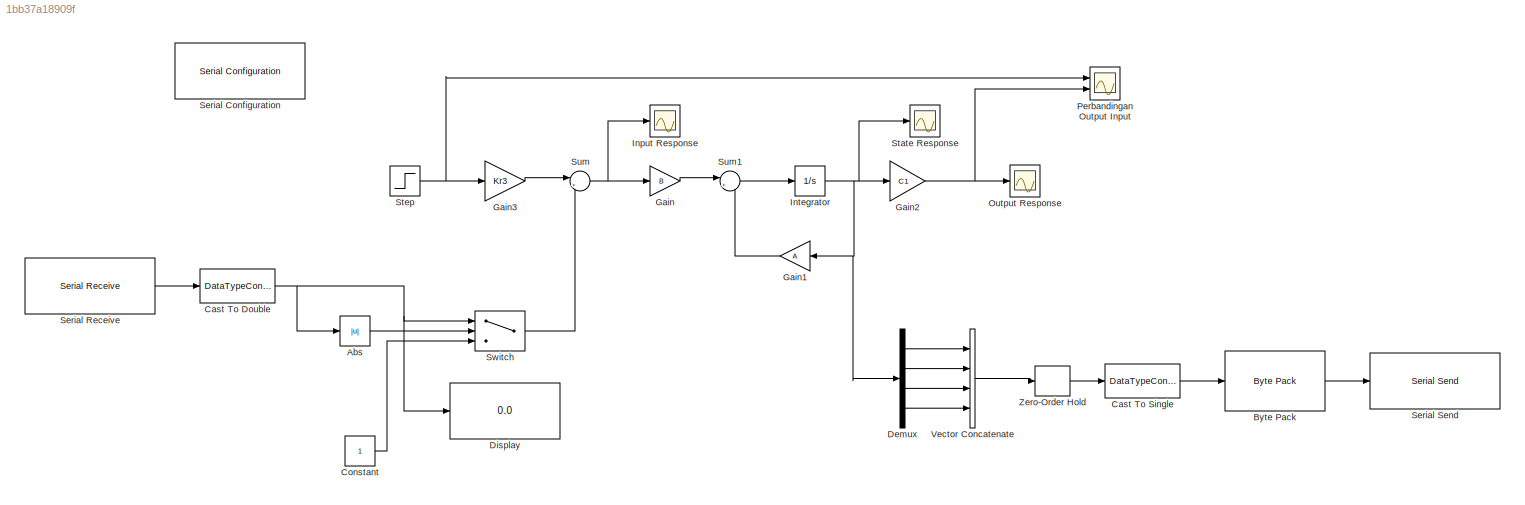
MODEL slx_1bb37a18909f
KIND model
CONFIG AbsTol = auto
CONFIG EnableMultiTasking = off
CONFIG FixedStep = auto
CONFIG MaxStep = auto
CONFIG MinStep = auto
CONFIG RelTol = 1e-3
CONFIG SampleTimeConstraint = Unconstrained
CONFIG SolverName = VariableStepAuto
CONFIG StartTime = 0.0
CONFIG StopTime = 60
BLOCK [Abs] Abs
  SaturateOnIntegerOverflow = off
BLOCK [Reference] Byte Pack  REF=svdutilitieslib/Byte Pack
  Ports = [1, 1]
  SourceBlock = svdutilitieslib/Byte Pack
  SourceProductBaseCode = ANDROID,ARDUINO,ML_ARDUINO,ECCORTEXA,ECCORTEXR,SC_BEAGLEBONE_BLUE,EC_FREEDOM_BOARD,EC_FRDM_K64F,INTEL_BLOCKSET,JETSONCPU,MICROBIT,NUCLEO,NVIDIA,PX4AUTOPILOTS,RASPPIIO,STMICRODIS,TIC2000,XILINX_BLOCKSET
  SourceType = Byte pack
BLOCK [DataTypeConversion] Cast To Double
  OutDataTypeStr = double
  RndMeth = Floor
  SaturateOnIntegerOverflow = off
BLOCK [DataTypeConversion] Cast To Single
  OutDataTypeStr = single
  RndMeth = Floor
  SaturateOnIntegerOverflow = off
BLOCK [Constant] Constant
BLOCK [Demux] Demux
  Ports = [1, 4]
BLOCK [Display] Display
  Decimation = 1
  Format = long
  Ports = [1]
BLOCK [Gain] Gain
  Gain = B
  Multiplication = Matrix(K*u)
BLOCK [Gain] Gain1
  Gain = A
  Multiplication = Matrix(K*u)
BLOCK [Gain] Gain2
  Gain = C1
  Multiplication = Matrix(K*u)
BLOCK [Gain] Gain3
  Gain = Kr3
  Multiplication = Matrix(K*u)
BLOCK [Scope] Input Response
  Floating = off
  NumInputPorts = 1
  Ports = [1]
  ScopeSpecificationString = Simulink.scopes.TimeScopeBlockCfg('CurrentConfiguration', extmgr.ConfigurationSet(extmgr.Configuration('Core','General UI',true),extmgr.Configuration('Core','Source UI',true),extmgr.Configuration('Sources','WiredSimulink',true,'DataLoggingVariableName','ScopeData1'),extmgr.Configuration('Visuals','Time Domain',true,'SerializedDisplays',{struct('MinYLimReal','-3.99172','MaxYLimReal','15.92549','YLa...<+1366ch>
BLOCK [Integrator] Integrator
  InitialCondition = [0;0;0;0]
  Ports = [1, 1]
BLOCK [Scope] Output Response
  Floating = off
  NumInputPorts = 1
  Ports = [1]
  ScopeSpecificationString = Simulink.scopes.TimeScopeBlockCfg('CurrentConfiguration', extmgr.ConfigurationSet(extmgr.Configuration('Core','General UI',true),extmgr.Configuration('Core','Source UI',true),extmgr.Configuration('Sources','WiredSimulink',true),extmgr.Configuration('Visuals','Time Domain',true,'SerializedDisplays',{struct('MinYLimReal','-0.68202','MaxYLimReal','6.05667','YLabelReal','','MinYLimMag','0.00000','MaxY...<+1325ch>
BLOCK [Scope] Perbandingan Output Input
  Floating = off
  NumInputPorts = 2
  Ports = [2]
  ScopeSpecificationString = Simulink.scopes.TimeScopeBlockCfg('CurrentConfiguration', extmgr.ConfigurationSet(extmgr.Configuration('Core','General UI',true),extmgr.Configuration('Core','Source UI',true),extmgr.Configuration('Sources','WiredSimulink',true,'DataLoggingVariableName','ScopeData3'),extmgr.Configuration('Visuals','Time Domain',true,'SerializedDisplays',{struct('MinYLimReal','-0.16439','MaxYLimReal','1.1655','YLabe...<+1432ch>
BLOCK [Reference] Serial Configuration  REF=instrumentseriallib/Serial Configuration
  Ports = []
  Priority = -200000
  SourceBlock = instrumentseriallib/Serial Configuration
  SourceProductBaseCode = IC
  SourceType = matlabshared.seriallib.internal.system.SerialConfiguration
BLOCK [Reference] Serial Receive  REF=instrumentseriallib/Serial Receive
  Ports = [0, 1]
  Priority = 1
  SourceBlock = instrumentseriallib/Serial Receive
  SourceProductBaseCode = IC
  SourceType = matlabshared.seriallib.internal.system.SerialReceive
BLOCK [Reference] Serial Send  REF=instrumentseriallib/Serial Send
  Ports = [1]
  Priority = 1
  SourceBlock = instrumentseriallib/Serial Send
  SourceProductBaseCode = IC
  SourceType = matlabshared.seriallib.internal.system.SerialSend
BLOCK [Scope] State Response
  Floating = off
  NumInputPorts = 1
  Ports = [1]
  ScopeSpecificationString = Simulink.scopes.TimeScopeBlockCfg('CurrentConfiguration', extmgr.ConfigurationSet(extmgr.Configuration('Core','General UI',true),extmgr.Configuration('Core','Source UI',true),extmgr.Configuration('Sources','WiredSimulink',true,'DataLoggingVariableName','ScopeData2'),extmgr.Configuration('Visuals','Time Domain',true,'SerializedDisplays',{struct('MinYLimReal','-1.03683','MaxYLimReal','6.09609','YLab...<+1414ch>
BLOCK [Step] Step
  SampleTime = 0
  Time = 0.5
BLOCK [Sum] Sum
  Inputs = |+-
  Ports = [2, 1]
BLOCK [Sum] Sum1
  Inputs = |++
  Ports = [2, 1]
BLOCK [Switch] Switch
  InputSameDT = off
  SaturateOnIntegerOverflow = off
  ZeroCross = off
BLOCK [Concatenate] Vector Concatenate
  NumInputs = 4
  Ports = [4, 1]
BLOCK [ZeroOrderHold] Zero-Order Hold
  SampleTime = 0.05
LINE Abs:1 -> Switch:2
LINE Byte Pack:1 -> Serial Send:1
NET Cast To Double:1 -> Abs:1, Display:1, Switch:1
LINE Cast To Single:1 -> Byte Pack:1
LINE Constant:1 -> Switch:3
LINE Demux:1 -> Vector Concatenate:1
LINE Demux:2 -> Vector Concatenate:2
LINE Demux:3 -> Vector Concatenate:3
LINE Demux:4 -> Vector Concatenate:4
LINE Gain1:1 -> Sum1:2
NET Gain2:1 -> Output Response:1, Perbandingan Output Input:2
LINE Gain3:1 -> Sum:1
LINE Gain:1 -> Sum1:1
NET Integrator:1 -> Demux:1, Gain1:1, Gain2:1, State Response:1
LINE Serial Receive:1 -> Cast To Double:1
NET Step:1 -> Gain3:1, Perbandingan Output Input:1
LINE Sum1:1 -> Integrator:1
NET Sum:1 -> Gain:1, Input Response:1
LINE Switch:1 -> Sum:2
LINE Vector Concatenate:1 -> Zero-Order Hold:1
LINE Zero-Order Hold:1 -> Cast To Single:1
note: NET lines group one-source signal fan-out (src -> all destinations, sorted); 1:1 wires keep LINE
